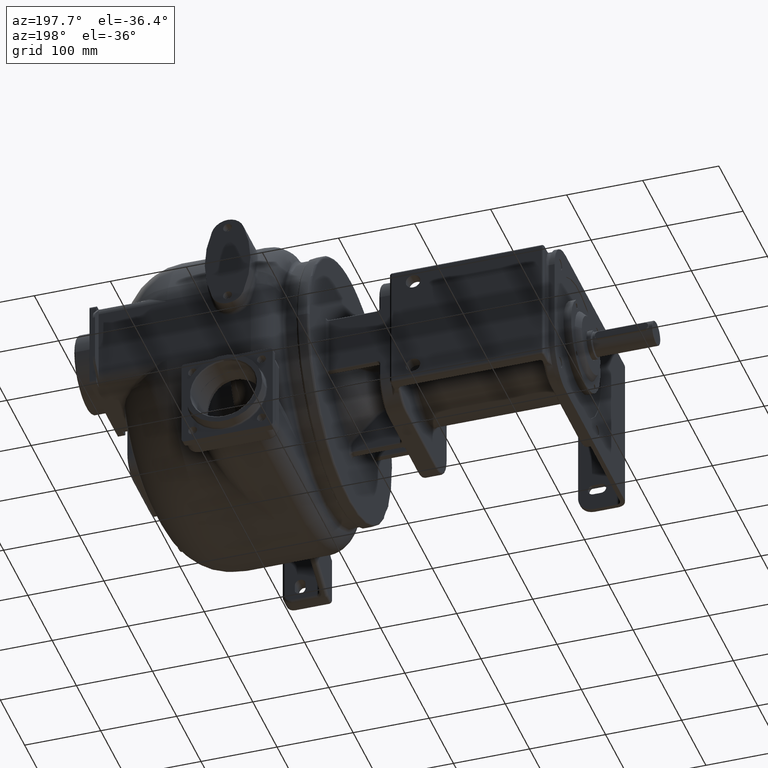
[diagram: clean part render]
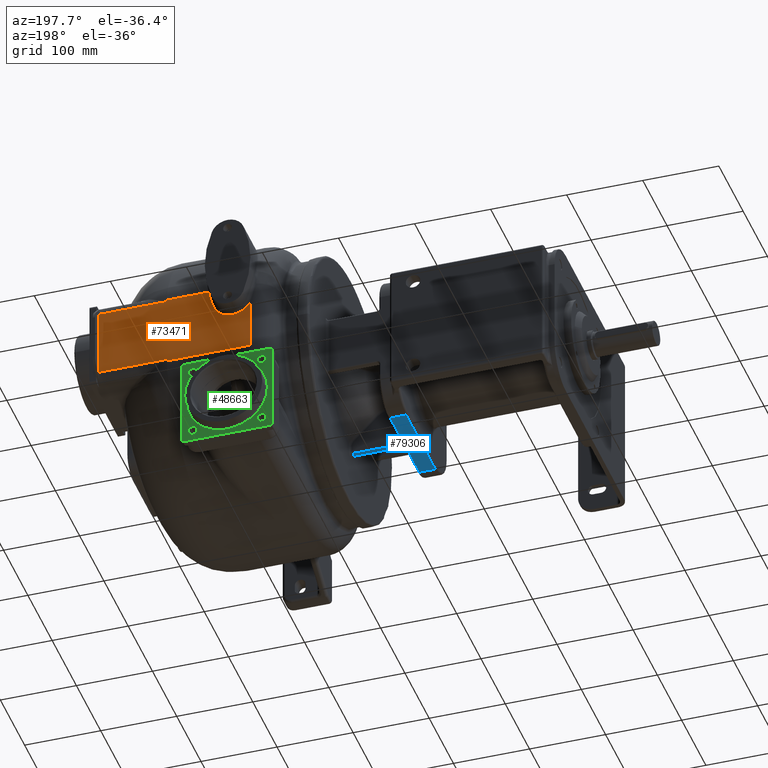
[diagram: same view with three faces highlighted in distinct colors, each labeled with its STEP entity id]
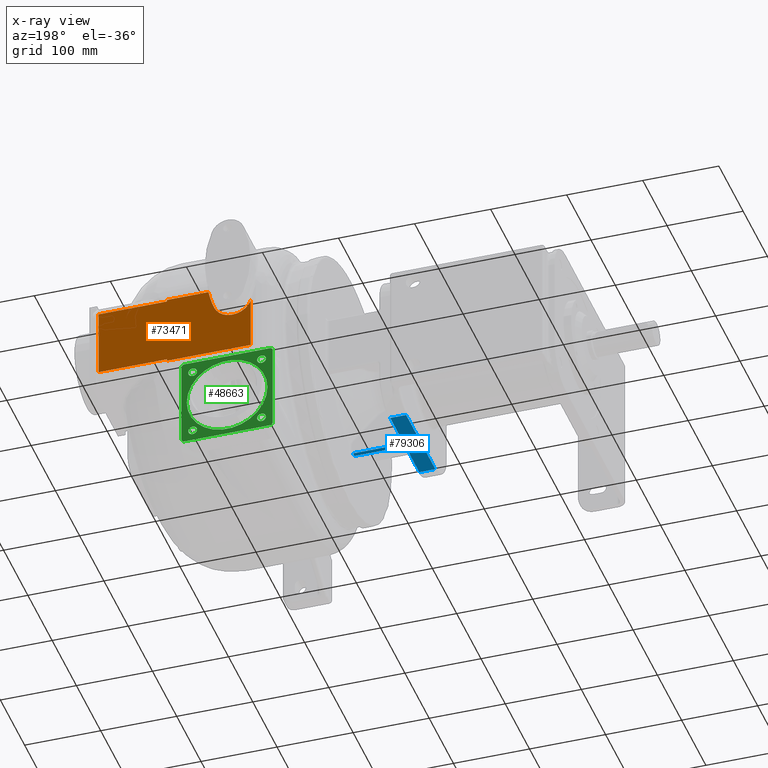
[diagram: x-ray of the same camera — body ghosted, the three highlighted faces saturated]
A machine part, auxiliary view with three faces highlighted in distinct colors.
The next image is the same camera in x-ray (body ghosted, the three faces saturated) — at least one of them is partly hidden behind the body in this view.
Their STEP definitions:

[orange] entity #73471 — the highlighted planar face has unit normal (0, 1, 0).
#4989=CARTESIAN_POINT('',(5.E1,4.1E2,3.1E1));
#21417=DIRECTION('',(0.E0,0.E0,1.E0));
#21418=VECTOR('',#21417,9.E1);
#21419=CARTESIAN_POINT('',(1.4E2,4.1E2,-5.9E1));
#21420=LINE('',#21419,#21418);
#21421=DIRECTION('',(-1.E0,0.E0,0.E0));
#21422=VECTOR('',#21421,9.E1);
#21423=CARTESIAN_POINT('',(1.4E2,4.1E2,3.1E1));
#21424=LINE('',#21423,#21422);
#21425=DIRECTION('',(-2.293467167984E-10,-2.519065020966E-6,9.999999999968E-1));
#21426=VECTOR('',#21425,2.339201514186E0);
#21427=CARTESIAN_POINT('',(5.E1,4.1E2,3.1E1));
#21428=LINE('',#21427,#21426);
#21429=CARTESIAN_POINT('',(-1.46E2,4.1E2,6.E1));
#21430=DIRECTION('',(0.E0,-1.E0,0.E0));
#21431=DIRECTION('',(9.322033898641E-1,0.E0,-3.619348559146E-1));
#21432=AXIS2_PLACEMENT_3D('',#21429,#21430,#21431);
#21434=CARTESIAN_POINT('',(-3.6E1,4.1E2,1.729168699187E1));
#21435=DIRECTION('',(0.E0,-1.E0,0.E0));
#21436=DIRECTION('',(-9.230769230769E-1,0.E0,-3.846153846154E-1));
#21437=AXIS2_PLACEMENT_3D('',#21434,#21435,#21436);
#21439=DIRECTION('',(-5.627533284999E-12,0.E0,-1.E0));
#21440=VECTOR('',#21439,6.863088850656E1);
#21441=CARTESIAN_POINT('',(-5.999999999961E1,4.1E2,7.291686992556E0));
#21442=LINE('',#21441,#21440);
#21443=DIRECTION('',(1.E0,-6.269594078686E-8,-1.545818019052E-12));
#21444=VECTOR('',#21443,1.099999999993E2);
#21445=CARTESIAN_POINT('',(-6.E1,4.1E2,-6.133920151401E1));
#21446=LINE('',#21445,#21444);
#21447=DIRECTION('',(2.816775236030E-10,2.948251121026E-6,9.999999999957E-1));
#21448=VECTOR('',#21447,2.339201514189E0);
#21449=CARTESIAN_POINT('',(4.999999999934E1,4.099999931034E2,
-6.133920151418E1));
#21450=LINE('',#21449,#21448);
#21451=DIRECTION('',(-1.E0,0.E0,0.E0));
#21452=VECTOR('',#21451,9.E1);
#21453=CARTESIAN_POINT('',(1.4E2,4.1E2,-5.9E1));
#21454=LINE('',#21453,#21452);
#35512=CARTESIAN_POINT('',(-5.999999999961E1,4.1E2,7.291686992556E0));
#36093=CARTESIAN_POINT('',(-4.489569910618E0,4.1E2,3.333920151389E1));
#36114=DIRECTION('',(1.E0,-1.081418099115E-7,5.307661818834E-12));
#36115=VECTOR('',#36114,5.448956991008E1);
#36116=CARTESIAN_POINT('',(-4.489569910618E0,4.1E2,3.333920151389E1));
#36117=LINE('',#36116,#36115);
#36789=CARTESIAN_POINT('',(5.E1,4.1E2,-5.9E1));
#39057=CARTESIAN_POINT('',(-6.E1,4.1E2,-6.133920151418E1));
#39058=VERTEX_POINT('',#39057);
#39061=CARTESIAN_POINT('',(4.999999999871E1,4.1E2,-6.133920151418E1));
#39062=VERTEX_POINT('',#39061);
#39063=CARTESIAN_POINT('',(4.999999999896E1,4.1E2,3.333920151418E1));
#39064=VERTEX_POINT('',#39063);
#39084=VERTEX_POINT('',#35512);
#39090=VERTEX_POINT('',#36093);
#39096=CARTESIAN_POINT('',(-1.176271186441E1,4.1E2,7.881380735847E0));
#39097=VERTEX_POINT('',#39096);
#39099=VERTEX_POINT('',#4989);
#39109=VERTEX_POINT('',#36789);
#40117=CARTESIAN_POINT('',(1.4E2,4.1E2,-5.9E1));
#40119=VERTEX_POINT('',#40117);
#40122=CARTESIAN_POINT('',(1.4E2,4.1E2,3.1E1));
#40124=VERTEX_POINT('',#40122);
#73448=CARTESIAN_POINT('',(-9.E1,4.1E2,-6.133920151418E1));
#73449=DIRECTION('',(0.E0,1.E0,0.E0));
#73450=DIRECTION('',(0.E0,0.E0,1.E0));
#73451=AXIS2_PLACEMENT_3D('',#73448,#73449,#73450);
#73452=PLANE('',#73451);
#73453=ORIENTED_EDGE('',*,*,#50692,.T.);
#73454=ORIENTED_EDGE('',*,*,#50634,.T.);
#73456=ORIENTED_EDGE('',*,*,#73455,.T.);
#73458=ORIENTED_EDGE('',*,*,#73457,.F.);
#73460=ORIENTED_EDGE('',*,*,#73459,.F.);
#73462=ORIENTED_EDGE('',*,*,#73461,.F.);
#73464=ORIENTED_EDGE('',*,*,#73463,.T.);
#73465=ORIENTED_EDGE('',*,*,#50396,.T.);
#73467=ORIENTED_EDGE('',*,*,#73466,.T.);
#73468=ORIENTED_EDGE('',*,*,#50707,.F.);
#73469=EDGE_LOOP('',(#73453,#73454,#73456,#73458,#73460,#73462,#73464,#73465,
#73467,#73468));
#73470=FACE_OUTER_BOUND('',#73469,.F.);
#73471=ADVANCED_FACE('',(#73470),#73452,.T.);
#21433=CIRCLE('',#21432,1.44E2);
#21438=CIRCLE('',#21437,2.6E1);
#50396=EDGE_CURVE('',#39058,#39062,#21446,.T.);
#50634=EDGE_CURVE('',#40124,#39099,#21424,.T.);
#50692=EDGE_CURVE('',#40119,#40124,#21420,.T.);
#50707=EDGE_CURVE('',#40119,#39109,#21454,.T.);
#73455=EDGE_CURVE('',#39099,#39064,#21428,.T.);
#73457=EDGE_CURVE('',#39090,#39064,#36117,.T.);
#73459=EDGE_CURVE('',#39097,#39090,#21433,.T.);
#73461=EDGE_CURVE('',#39084,#39097,#21438,.T.);
#73463=EDGE_CURVE('',#39084,#39058,#21442,.T.);
#73466=EDGE_CURVE('',#39062,#39109,#21450,.T.);

[blue] entity #79306 — the highlighted planar face has unit normal (0, 0, -1).
#26366=DIRECTION('',(0.E0,-1.E0,0.E0));
#26367=VECTOR('',#26366,1.2E2);
#26368=CARTESIAN_POINT('',(-2.165E2,2.6E2,-1.E2));
#26369=LINE('',#26368,#26367);
#26370=DIRECTION('',(1.E0,8.120488408687E-14,0.E0));
#26371=VECTOR('',#26370,2.1E1);
#26372=CARTESIAN_POINT('',(-2.165E2,1.4E2,-1.E2));
#26373=LINE('',#26372,#26371);
#26374=DIRECTION('',(-2.071505360410E-13,-1.E0,0.E0));
#26375=VECTOR('',#26374,5.199999999995E1);
#26376=CARTESIAN_POINT('',(-1.955E2,1.92E2,-1.E2));
#26377=LINE('',#26376,#26375);
#26378=CARTESIAN_POINT('',(-1.905E2,1.92E2,-1.E2));
#26379=DIRECTION('',(0.E0,0.E0,1.E0));
#26380=DIRECTION('',(0.E0,1.E0,0.E0));
#26381=AXIS2_PLACEMENT_3D('',#26378,#26379,#26380);
#26383=DIRECTION('',(-1.E0,-2.447934328361E-13,-2.588942680309E-11));
#26384=VECTOR('',#26383,6.2E1);
#26385=CARTESIAN_POINT('',(-1.285E2,1.97E2,-9.999999999839E1));
#26386=LINE('',#26385,#26384);
#26387=DIRECTION('',(0.E0,-1.E0,-1.317251493068E-10));
#26388=VECTOR('',#26387,6.E0);
#26389=CARTESIAN_POINT('',(-1.285E2,2.03E2,-9.999999999760E1));
#26390=LINE('',#26389,#26388);
#26391=DIRECTION('',(-1.E0,1.411917178157E-13,-3.863679268999E-11));
#26392=VECTOR('',#26391,6.199999999996E1);
#26393=CARTESIAN_POINT('',(-1.285E2,2.03E2,-9.999999999760E1));
#26394=LINE('',#26393,#26392);
#26395=CARTESIAN_POINT('',(-1.905E2,2.08E2,-1.E2));
#26396=DIRECTION('',(0.E0,0.E0,-1.E0));
#26397=DIRECTION('',(0.E0,-1.E0,0.E0));
#26398=AXIS2_PLACEMENT_3D('',#26395,#26396,#26397);
#26400=DIRECTION('',(-1.918465386554E-13,1.E0,0.E0));
#26401=VECTOR('',#26400,5.199999999996E1);
#26402=CARTESIAN_POINT('',(-1.955E2,2.08E2,-1.E2));
#26403=LINE('',#26402,#26401);
#26414=DIRECTION('',(1.E0,-1.326346440086E-13,0.E0));
#26415=VECTOR('',#26414,2.1E1);
#26416=CARTESIAN_POINT('',(-2.165E2,2.6E2,-1.E2));
#26417=LINE('',#26416,#26415);
#41743=CARTESIAN_POINT('',(-1.955E2,1.4E2,-1.E2));
#41744=VERTEX_POINT('',#41743);
#41747=CARTESIAN_POINT('',(-1.955E2,1.92E2,-1.E2));
#41748=VERTEX_POINT('',#41747);
#41751=CARTESIAN_POINT('',(-1.905E2,1.97E2,-1.E2));
#41752=VERTEX_POINT('',#41751);
#41755=CARTESIAN_POINT('',(-1.285E2,1.97E2,-9.999999999839E1));
#41756=VERTEX_POINT('',#41755);
#41785=CARTESIAN_POINT('',(-1.955E2,2.6E2,-1.E2));
#41786=VERTEX_POINT('',#41785);
#41789=CARTESIAN_POINT('',(-1.955E2,2.08E2,-1.E2));
#41790=VERTEX_POINT('',#41789);
#41793=CARTESIAN_POINT('',(-1.905E2,2.03E2,-1.E2));
#41794=VERTEX_POINT('',#41793);
#41795=CARTESIAN_POINT('',(-1.285E2,2.03E2,-9.999999999760E1));
#41796=VERTEX_POINT('',#41795);
#42001=CARTESIAN_POINT('',(-2.165E2,2.6E2,-1.E2));
#42003=VERTEX_POINT('',#42001);
#42006=CARTESIAN_POINT('',(-2.165E2,1.4E2,-1.E2));
#42007=VERTEX_POINT('',#42006);
#79282=CARTESIAN_POINT('',(-1.935E2,2.6E2,-1.E2));
#79283=DIRECTION('',(0.E0,0.E0,-1.E0));
#79284=DIRECTION('',(0.E0,-1.E0,0.E0));
#79285=AXIS2_PLACEMENT_3D('',#79282,#79283,#79284);
#79286=PLANE('',#79285);
#79288=ORIENTED_EDGE('',*,*,#79287,.F.);
#79290=ORIENTED_EDGE('',*,*,#79289,.T.);
#79291=ORIENTED_EDGE('',*,*,#79272,.T.);
#79293=ORIENTED_EDGE('',*,*,#79292,.F.);
#79295=ORIENTED_EDGE('',*,*,#79294,.F.);
#79296=ORIENTED_EDGE('',*,*,#78521,.F.);
#79297=ORIENTED_EDGE('',*,*,#78731,.F.);
#79299=ORIENTED_EDGE('',*,*,#79298,.T.);
#79301=ORIENTED_EDGE('',*,*,#79300,.T.);
#79303=ORIENTED_EDGE('',*,*,#79302,.T.);
#79304=EDGE_LOOP('',(#79288,#79290,#79291,#79293,#79295,#79296,#79297,#79299,
#79301,#79303));
#79305=FACE_OUTER_BOUND('',#79304,.F.);
#79306=ADVANCED_FACE('',(#79305),#79286,.T.);
#26382=CIRCLE('',#26381,5.E0);
#26399=CIRCLE('',#26398,5.E0);
#78521=EDGE_CURVE('',#41756,#41752,#26386,.T.);
#78731=EDGE_CURVE('',#41796,#41756,#26390,.T.);
#79272=EDGE_CURVE('',#42007,#41744,#26373,.T.);
#79287=EDGE_CURVE('',#42003,#41786,#26417,.T.);
#79289=EDGE_CURVE('',#42003,#42007,#26369,.T.);
#79292=EDGE_CURVE('',#41748,#41744,#26377,.T.);
#79294=EDGE_CURVE('',#41752,#41748,#26382,.T.);
#79298=EDGE_CURVE('',#41796,#41794,#26394,.T.);
#79300=EDGE_CURVE('',#41794,#41790,#26399,.T.);
#79302=EDGE_CURVE('',#41790,#41786,#26403,.T.);

[green] entity #48663 — the highlighted planar face has unit normal (0, 1, 0).
#2765=CARTESIAN_POINT('',(-3.6E1,4.32E2,-1.49E2));
#2766=DIRECTION('',(0.E0,1.E0,0.E0));
#2767=DIRECTION('',(-1.E0,0.E0,0.E0));
#2768=AXIS2_PLACEMENT_3D('',#2765,#2766,#2767);
#2770=CARTESIAN_POINT('',(-3.6E1,4.32E2,-1.49E2));
#2771=DIRECTION('',(0.E0,-1.E0,0.E0));
#2772=DIRECTION('',(-1.E0,0.E0,0.E0));
#2773=AXIS2_PLACEMENT_3D('',#2770,#2771,#2772);
#2775=CARTESIAN_POINT('',(-8.125483399594E1,4.32E2,-1.037451660041E2));
#2776=DIRECTION('',(0.E0,-1.E0,0.E0));
#2777=DIRECTION('',(0.E0,0.E0,-1.E0));
#2778=AXIS2_PLACEMENT_3D('',#2775,#2776,#2777);
#2780=CARTESIAN_POINT('',(-8.125483399594E1,4.32E2,-1.037451660041E2));
#2781=DIRECTION('',(0.E0,-1.E0,0.E0));
#2782=DIRECTION('',(0.E0,0.E0,1.E0));
#2783=AXIS2_PLACEMENT_3D('',#2780,#2781,#2782);
#2785=CARTESIAN_POINT('',(9.254833995939E0,4.32E2,-1.037451660041E2));
#2786=DIRECTION('',(0.E0,-1.E0,0.E0));
#2787=DIRECTION('',(-1.E0,0.E0,0.E0));
#2788=AXIS2_PLACEMENT_3D('',#2785,#2786,#2787);
#2790=CARTESIAN_POINT('',(9.254833995939E0,4.32E2,-1.037451660041E2));
#2791=DIRECTION('',(0.E0,-1.E0,0.E0));
#2792=DIRECTION('',(1.E0,0.E0,0.E0));
#2793=AXIS2_PLACEMENT_3D('',#2790,#2791,#2792);
#2795=CARTESIAN_POINT('',(9.254833995939E0,4.32E2,-1.942548339959E2));
#2796=DIRECTION('',(0.E0,-1.E0,0.E0));
#2797=DIRECTION('',(0.E0,0.E0,1.E0));
#2798=AXIS2_PLACEMENT_3D('',#2795,#2796,#2797);
#2800=CARTESIAN_POINT('',(9.254833995939E0,4.32E2,-1.942548339959E2));
#2801=DIRECTION('',(0.E0,-1.E0,0.E0));
#2802=DIRECTION('',(0.E0,0.E0,-1.E0));
#2803=AXIS2_PLACEMENT_3D('',#2800,#2801,#2802);
#2805=CARTESIAN_POINT('',(-8.125483399594E1,4.32E2,-1.942548339959E2));
#2806=DIRECTION('',(0.E0,-1.E0,0.E0));
#2807=DIRECTION('',(1.E0,0.E0,0.E0));
#2808=AXIS2_PLACEMENT_3D('',#2805,#2806,#2807);
#2810=CARTESIAN_POINT('',(-8.125483399594E1,4.32E2,-1.942548339959E2));
#2811=DIRECTION('',(0.E0,-1.E0,0.E0));
#2812=DIRECTION('',(-1.E0,0.E0,0.E0));
#2813=AXIS2_PLACEMENT_3D('',#2810,#2811,#2812);
#2823=DIRECTION('',(1.E0,0.E0,0.E0));
#2824=VECTOR('',#2823,1.12E2);
#2825=CARTESIAN_POINT('',(-9.2E1,4.32E2,-8.9E1));
#2826=LINE('',#2825,#2824);
#2926=CARTESIAN_POINT('',(2.E1,4.32E2,-9.3E1));
#2927=DIRECTION('',(0.E0,-1.E0,0.E0));
#2928=DIRECTION('',(1.E0,0.E0,0.E0));
#2929=AXIS2_PLACEMENT_3D('',#2926,#2927,#2928);
#2939=DIRECTION('',(0.E0,0.E0,-1.E0));
#2940=VECTOR('',#2939,1.12E2);
#2941=CARTESIAN_POINT('',(2.4E1,4.32E2,-9.3E1));
#2942=LINE('',#2941,#2940);
#2952=CARTESIAN_POINT('',(2.E1,4.32E2,-2.05E2));
#2953=DIRECTION('',(0.E0,-1.E0,0.E0));
#2954=DIRECTION('',(0.E0,0.E0,-1.E0));
#2955=AXIS2_PLACEMENT_3D('',#2952,#2953,#2954);
#2965=DIRECTION('',(-1.E0,0.E0,0.E0));
#2966=VECTOR('',#2965,1.12E2);
#2967=CARTESIAN_POINT('',(2.E1,4.32E2,-2.09E2));
#2968=LINE('',#2967,#2966);
#2978=CARTESIAN_POINT('',(-9.2E1,4.32E2,-2.05E2));
#2979=DIRECTION('',(0.E0,-1.E0,0.E0));
#2980=DIRECTION('',(-1.E0,0.E0,0.E0));
#2981=AXIS2_PLACEMENT_3D('',#2978,#2979,#2980);
#2991=DIRECTION('',(0.E0,0.E0,1.E0));
#2992=VECTOR('',#2991,1.12E2);
#2993=CARTESIAN_POINT('',(-9.6E1,4.32E2,-2.05E2));
#2994=LINE('',#2993,#2992);
#3004=CARTESIAN_POINT('',(-9.2E1,4.32E2,-9.3E1));
#3005=DIRECTION('',(0.E0,-1.E0,0.E0));
#3006=DIRECTION('',(0.E0,0.E0,1.E0));
#3007=AXIS2_PLACEMENT_3D('',#3004,#3005,#3006);
#39922=CARTESIAN_POINT('',(-8.9E1,4.32E2,-1.49E2));
#39924=VERTEX_POINT('',#39922);
#39926=CARTESIAN_POINT('',(1.7E1,4.32E2,-1.49E2));
#39928=VERTEX_POINT('',#39926);
#39933=CARTESIAN_POINT('',(-9.2E1,4.32E2,-8.9E1));
#39934=CARTESIAN_POINT('',(2.E1,4.32E2,-8.9E1));
#39935=VERTEX_POINT('',#39933);
#39936=VERTEX_POINT('',#39934);
#39937=CARTESIAN_POINT('',(2.4E1,4.32E2,-9.3E1));
#39938=CARTESIAN_POINT('',(2.4E1,4.32E2,-2.05E2));
#39939=VERTEX_POINT('',#39937);
#39940=VERTEX_POINT('',#39938);
#39941=CARTESIAN_POINT('',(2.E1,4.32E2,-2.09E2));
#39942=CARTESIAN_POINT('',(-9.2E1,4.32E2,-2.09E2));
#39943=VERTEX_POINT('',#39941);
#39944=VERTEX_POINT('',#39942);
#39945=CARTESIAN_POINT('',(-9.6E1,4.32E2,-2.05E2));
#39946=CARTESIAN_POINT('',(-9.6E1,4.32E2,-9.3E1));
#39947=VERTEX_POINT('',#39945);
#39948=VERTEX_POINT('',#39946);
#39977=CARTESIAN_POINT('',(-8.125483399594E1,4.32E2,-1.094951660041E2));
#39978=CARTESIAN_POINT('',(-8.125483399594E1,4.32E2,-9.799516600406E1));
#39979=VERTEX_POINT('',#39977);
#39980=VERTEX_POINT('',#39978);
#39989=CARTESIAN_POINT('',(3.504833995939E0,4.32E2,-1.037451660041E2));
#39990=CARTESIAN_POINT('',(1.500483399594E1,4.32E2,-1.037451660041E2));
#39991=VERTEX_POINT('',#39989);
#39992=VERTEX_POINT('',#39990);
#40001=CARTESIAN_POINT('',(9.254833995939E0,4.32E2,-1.885048339959E2));
#40002=CARTESIAN_POINT('',(9.254833995939E0,4.32E2,-2.000048339959E2));
#40003=VERTEX_POINT('',#40001);
#40004=VERTEX_POINT('',#40002);
#40011=CARTESIAN_POINT('',(-7.550483399594E1,4.32E2,-1.942548339959E2));
#40012=CARTESIAN_POINT('',(-8.700483399594E1,4.32E2,-1.942548339959E2));
#40013=VERTEX_POINT('',#40011);
#40014=VERTEX_POINT('',#40012);
#48612=CARTESIAN_POINT('',(-3.6E1,4.32E2,-1.49E2));
#48613=DIRECTION('',(0.E0,1.E0,0.E0));
#48614=DIRECTION('',(-1.E0,0.E0,0.E0));
#48615=AXIS2_PLACEMENT_3D('',#48612,#48613,#48614);
#48616=PLANE('',#48615);
#48618=ORIENTED_EDGE('',*,*,#48617,.F.);
#48620=ORIENTED_EDGE('',*,*,#48619,.T.);
#48622=ORIENTED_EDGE('',*,*,#48621,.F.);
#48624=ORIENTED_EDGE('',*,*,#48623,.T.);
#48626=ORIENTED_EDGE('',*,*,#48625,.F.);
#48628=ORIENTED_EDGE('',*,*,#48627,.T.);
#48630=ORIENTED_EDGE('',*,*,#48629,.F.);
#48632=ORIENTED_EDGE('',*,*,#48631,.T.);
#48633=EDGE_LOOP('',(#48618,#48620,#48622,#48624,#48626,#48628,#48630,#48632));
#48634=FACE_OUTER_BOUND('',#48633,.F.);
#48635=ORIENTED_EDGE('',*,*,#48607,.T.);
#48636=ORIENTED_EDGE('',*,*,#48591,.F.);
#48637=EDGE_LOOP('',(#48635,#48636));
#48638=FACE_BOUND('',#48637,.F.);
#48640=ORIENTED_EDGE('',*,*,#48639,.F.);
#48642=ORIENTED_EDGE('',*,*,#48641,.F.);
#48643=EDGE_LOOP('',(#48640,#48642));
#48644=FACE_BOUND('',#48643,.F.);
#48646=ORIENTED_EDGE('',*,*,#48645,.F.);
#48648=ORIENTED_EDGE('',*,*,#48647,.F.);
#48649=EDGE_LOOP('',(#48646,#48648));
#48650=FACE_BOUND('',#48649,.F.);
#48652=ORIENTED_EDGE('',*,*,#48651,.F.);
#48654=ORIENTED_EDGE('',*,*,#48653,.F.);
#48655=EDGE_LOOP('',(#48652,#48654));
#48656=FACE_BOUND('',#48655,.F.);
#48658=ORIENTED_EDGE('',*,*,#48657,.F.);
#48660=ORIENTED_EDGE('',*,*,#48659,.F.);
#48661=EDGE_LOOP('',(#48658,#48660));
#48662=FACE_BOUND('',#48661,.F.);
#48663=ADVANCED_FACE('',(#48634,#48638,#48644,#48650,#48656,#48662),#48616,.T.);
#2769=CIRCLE('',#2768,5.3E1);
#2774=CIRCLE('',#2773,5.3E1);
#2779=CIRCLE('',#2778,5.75E0);
#2784=CIRCLE('',#2783,5.75E0);
#2789=CIRCLE('',#2788,5.75E0);
#2794=CIRCLE('',#2793,5.75E0);
#2799=CIRCLE('',#2798,5.75E0);
#2804=CIRCLE('',#2803,5.75E0);
#2809=CIRCLE('',#2808,5.75E0);
#2814=CIRCLE('',#2813,5.75E0);
#2930=CIRCLE('',#2929,4.E0);
#2956=CIRCLE('',#2955,4.E0);
#2982=CIRCLE('',#2981,4.E0);
#3008=CIRCLE('',#3007,4.E0);
#48591=EDGE_CURVE('',#39924,#39928,#2774,.T.);
#48607=EDGE_CURVE('',#39924,#39928,#2769,.T.);
#48617=EDGE_CURVE('',#39935,#39936,#2826,.T.);
#48619=EDGE_CURVE('',#39935,#39948,#3008,.T.);
#48621=EDGE_CURVE('',#39947,#39948,#2994,.T.);
#48623=EDGE_CURVE('',#39947,#39944,#2982,.T.);
#48625=EDGE_CURVE('',#39943,#39944,#2968,.T.);
#48627=EDGE_CURVE('',#39943,#39940,#2956,.T.);
#48629=EDGE_CURVE('',#39939,#39940,#2942,.T.);
#48631=EDGE_CURVE('',#39939,#39936,#2930,.T.);
#48639=EDGE_CURVE('',#39979,#39980,#2779,.T.);
#48641=EDGE_CURVE('',#39980,#39979,#2784,.T.);
#48645=EDGE_CURVE('',#39991,#39992,#2789,.T.);
#48647=EDGE_CURVE('',#39992,#39991,#2794,.T.);
#48651=EDGE_CURVE('',#40003,#40004,#2799,.T.);
#48653=EDGE_CURVE('',#40004,#40003,#2804,.T.);
#48657=EDGE_CURVE('',#40013,#40014,#2809,.T.);
#48659=EDGE_CURVE('',#40014,#40013,#2814,.T.);